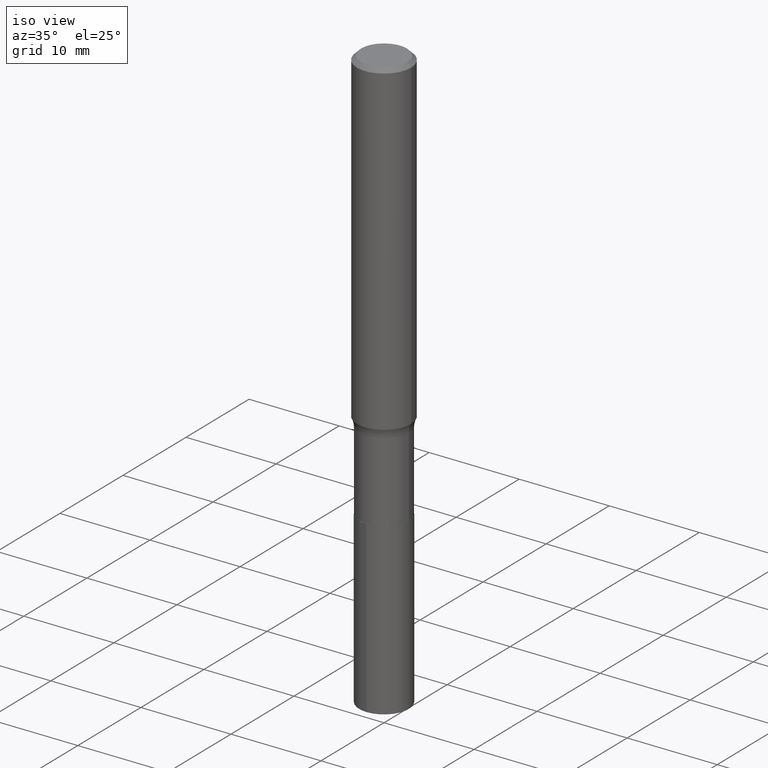
[diagram: clean part render]
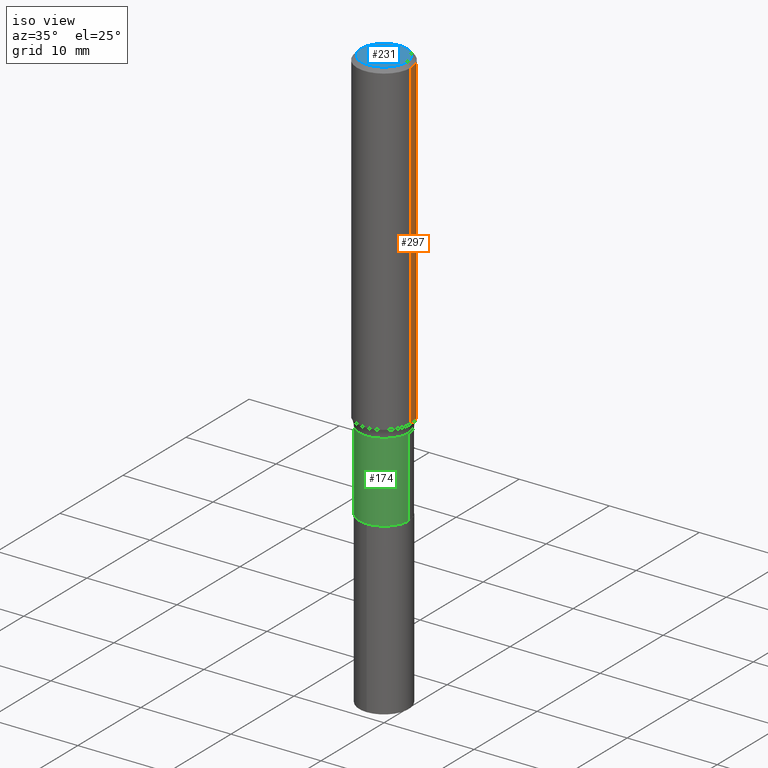
[diagram: same view with three faces highlighted in distinct colors, each labeled with its STEP entity id]
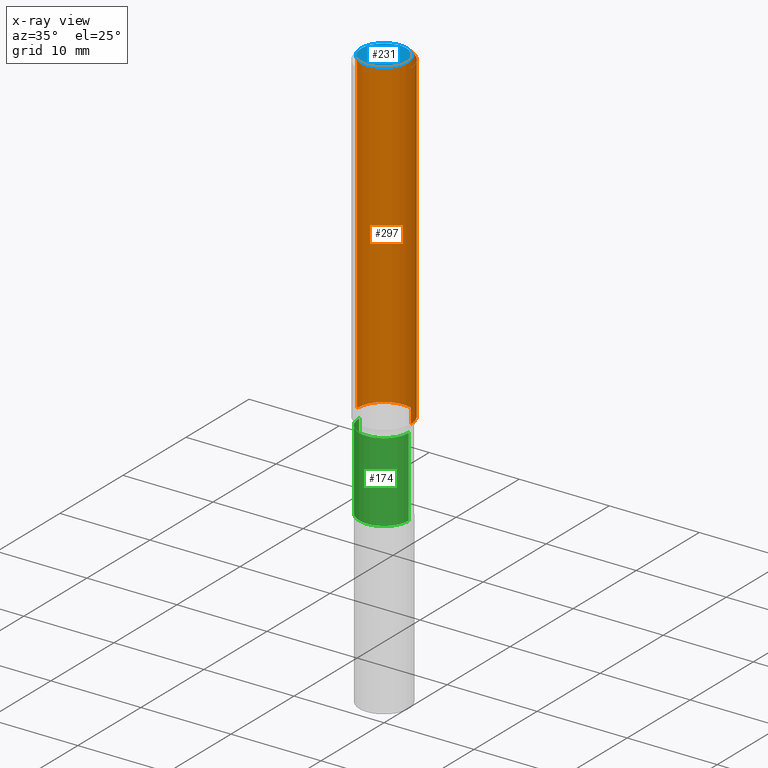
[diagram: x-ray of the same camera — body ghosted, the three highlighted faces saturated]
A machine part, iso view with three faces highlighted in distinct colors.
The next image is the same camera in x-ray (body ghosted, the three faces saturated) — at least one of them is partly hidden behind the body in this view.
Their STEP definitions:

[orange] entity #297 — the highlighted cylindrical surface (edge-blend (fillet) strip) has radius 2.9997 mm, axis along (-0, 0, 1).
#6 = DIRECTION ( 'NONE',  ( 1.000000000000000000, -6.982962677686266711E-15, 0.000000000000000000 ) ) ;
#22 = VECTOR ( 'NONE', #100, 39.37007874015748143 ) ;
#33 = AXIS2_PLACEMENT_3D ( 'NONE', #379, #261, #305 ) ;
#70 = VERTEX_POINT ( 'NONE', #304 ) ;
#86 = AXIS2_PLACEMENT_3D ( 'NONE', #457, #184, #6 ) ;
#100 = DIRECTION ( 'NONE',  ( -2.445468806185136877E-29, 3.491481338843145188E-15, 1.000000000000000000 ) ) ;
#129 = VERTEX_POINT ( 'NONE', #466 ) ;
#134 = CARTESIAN_POINT ( 'NONE',  ( -0.1181000000000000799, 8.391509709326788873E-16, -5.809262341591047988E-30 ) ) ;
#152 = VECTOR ( 'NONE', #459, 39.37007874015748143 ) ;
#165 = CIRCLE ( 'NONE', #86, 0.1180999999999999966 ) ;
#169 = ORIENTED_EDGE ( 'NONE', *, *, #186, .T. ) ;
#177 = ORIENTED_EDGE ( 'NONE', *, *, #233, .T. ) ;
#184 = DIRECTION ( 'NONE',  ( -2.445468806185136597E-29, 3.491481338843145583E-15, 1.000000000000000000 ) ) ;
#186 = EDGE_CURVE ( 'NONE', #440, #129, #453, .T. ) ;
#188 = FACE_OUTER_BOUND ( 'NONE', #392, .T. ) ;
#228 = AXIS2_PLACEMENT_3D ( 'NONE', #232, #386, #306 ) ;
#232 = CARTESIAN_POINT ( 'NONE',  ( 3.486158196102022756E-29, -4.977309976377515636E-15, -1.425558235412674124 ) ) ;
#233 = EDGE_CURVE ( 'NONE', #129, #70, #314, .T. ) ;
#247 = ORIENTED_EDGE ( 'NONE', *, *, #302, .F. ) ;
#261 = DIRECTION ( 'NONE',  ( -2.445468806185136597E-29, 3.491481338843145583E-15, 1.000000000000000000 ) ) ;
#264 = LINE ( 'NONE', #342, #152 ) ;
#284 = ORIENTED_EDGE ( 'NONE', *, *, #414, .F. ) ;
#297 = ADVANCED_FACE ( 'NONE', ( #188 ), #373, .T. ) ;
#302 = EDGE_CURVE ( 'NONE', #370, #70, #165, .T. ) ;
#304 = CARTESIAN_POINT ( 'NONE',  ( -0.1180999999999999966, -1.680429813214881537E-15, -0.01771500000000010913 ) ) ;
#305 = DIRECTION ( 'NONE',  ( 1.000000000000000000, -6.982962677686266711E-15, 4.876176775795936353E-29 ) ) ;
#306 = DIRECTION ( 'NONE',  ( 1.000000000000000000, -6.982962677686263555E-15, 0.000000000000000000 ) ) ;
#314 = LINE ( 'NONE', #134, #22 ) ;
#342 = CARTESIAN_POINT ( 'NONE',  ( 0.1181000000000000799, -8.246878922347486570E-16, 5.758764772215004644E-30 ) ) ;
#370 = VERTEX_POINT ( 'NONE', #484 ) ;
#373 = CYLINDRICAL_SURFACE ( 'NONE', #33, 0.1181000000000000799 ) ;
#379 = CARTESIAN_POINT ( 'NONE',  ( 0.000000000000000000, 0.000000000000000000, 0.000000000000000000 ) ) ;
#386 = DIRECTION ( 'NONE',  ( -2.445468806185136597E-29, 3.491481338843145583E-15, 1.000000000000000000 ) ) ;
#392 = EDGE_LOOP ( 'NONE', ( #169, #177, #247, #284 ) ) ;
#414 = EDGE_CURVE ( 'NONE', #440, #370, #264, .T. ) ;
#440 = VERTEX_POINT ( 'NONE', #489 ) ;
#453 = CIRCLE ( 'NONE', #228, 0.1181000000000001632 ) ;
#457 = CARTESIAN_POINT ( 'NONE',  ( 4.332147990156996744E-31, -6.185159191760670395E-17, -0.01771500000000010913 ) ) ;
#459 = DIRECTION ( 'NONE',  ( -2.445468806185136877E-29, 3.491481338843145188E-15, 1.000000000000000000 ) ) ;
#466 = CARTESIAN_POINT ( 'NONE',  ( -0.1181000000000001909, -4.138159005444835862E-15, -1.425558235412674124 ) ) ;
#484 = CARTESIAN_POINT ( 'NONE',  ( 0.1180999999999999966, -8.865394841523547570E-16, -0.01771500000000010913 ) ) ;
#489 = CARTESIAN_POINT ( 'NONE',  ( 0.1181000000000001909, -5.801997868612264688E-15, -1.425558235412674124 ) ) ;

[blue] entity #231 — the highlighted planar face has unit normal (0, -0, -1).
#19 = ORIENTED_EDGE ( 'NONE', *, *, #147, .T. ) ;
#82 = DIRECTION ( 'NONE',  ( 1.000000000000000000, -6.982962677686266711E-15, 4.875668750515085695E-29 ) ) ;
#85 = CARTESIAN_POINT ( 'NONE',  ( 0.1003850000000000159, -7.803837484803599345E-16, -2.868857591682071522E-17 ) ) ;
#88 = FACE_OUTER_BOUND ( 'NONE', #345, .T. ) ;
#124 = PLANE ( 'NONE',  #426 ) ;
#147 = EDGE_CURVE ( 'NONE', #472, #173, #277, .T. ) ;
#159 = CARTESIAN_POINT ( 'NONE',  ( 7.015701749847187307E-46, -1.001656274515824970E-31, -2.868857591682589212E-17 ) ) ;
#160 = EDGE_CURVE ( 'NONE', #173, #472, #250, .T. ) ;
#173 = VERTEX_POINT ( 'NONE', #85 ) ;
#231 = ADVANCED_FACE ( 'NONE', ( #88 ), #124, .F. ) ;
#236 = DIRECTION ( 'NONE',  ( 2.438088387897960049E-29, -3.491481338843145188E-15, -1.000000000000000000 ) ) ;
#241 = AXIS2_PLACEMENT_3D ( 'NONE', #159, #269, #341 ) ;
#250 = CIRCLE ( 'NONE', #241, 0.1003850000000000159 ) ;
#269 = DIRECTION ( 'NONE',  ( -2.445468806185136597E-29, 3.491481338843145583E-15, 1.000000000000000000 ) ) ;
#277 = CIRCLE ( 'NONE', #346, 0.1003850000000000159 ) ;
#341 = DIRECTION ( 'NONE',  ( 1.000000000000000000, -6.982962677686266711E-15, 4.875668750515085695E-29 ) ) ;
#345 = EDGE_LOOP ( 'NONE', ( #19, #390 ) ) ;
#346 = AXIS2_PLACEMENT_3D ( 'NONE', #464, #348, #82 ) ;
#348 = DIRECTION ( 'NONE',  ( -2.445468806185136597E-29, 3.491481338843145583E-15, 1.000000000000000000 ) ) ;
#352 = CARTESIAN_POINT ( 'NONE',  ( 3.507850874923593654E-46, -5.008281372579124849E-32, -1.434428795841294606E-17 ) ) ;
#390 = ORIENTED_EDGE ( 'NONE', *, *, #160, .T. ) ;
#426 = AXIS2_PLACEMENT_3D ( 'NONE', #352, #236, #481 ) ;
#464 = CARTESIAN_POINT ( 'NONE',  ( 7.015701749847187307E-46, -1.001656274515824970E-31, -2.868857591682589212E-17 ) ) ;
#472 = VERTEX_POINT ( 'NONE', #478 ) ;
#478 = CARTESIAN_POINT ( 'NONE',  ( -0.1003850000000000159, 7.319105043583386689E-16, -2.868857591683090262E-17 ) ) ;
#481 = DIRECTION ( 'NONE',  ( -1.000000000000000000, 6.982962677686265922E-15, -4.876176775795935793E-29 ) ) ;

[green] entity #174 — the highlighted cylindrical surface (edge-blend (fillet) strip) has radius 2.7495 mm, axis along (-0, 0, 1).
#7 = CYLINDRICAL_SURFACE ( 'NONE', #171, 0.1082499999999999851 ) ;
#8 = CARTESIAN_POINT ( 'NONE',  ( 4.427521273598189436E-29, -6.321326963975514491E-15, -1.810499999999999998 ) ) ;
#11 = DIRECTION ( 'NONE',  ( 1.000000000000000000, -6.982962677686266711E-15, 4.876176775795935232E-29 ) ) ;
#35 = VERTEX_POINT ( 'NONE', #446 ) ;
#39 = DIRECTION ( 'NONE',  ( -2.445468806185136877E-29, 3.491481338843145188E-15, 1.000000000000000000 ) ) ;
#43 = DIRECTION ( 'NONE',  ( -2.445468806185136877E-29, 3.491481338843145188E-15, 1.000000000000000000 ) ) ;
#49 = CARTESIAN_POINT ( 'NONE',  ( -0.1082499999999999851, 7.691625114603083455E-16, -5.324747235200934608E-30 ) ) ;
#50 = DIRECTION ( 'NONE',  ( -2.445468806185136597E-29, 3.491481338843145583E-15, 1.000000000000000000 ) ) ;
#53 = EDGE_CURVE ( 'NONE', #90, #360, #67, .T. ) ;
#67 = LINE ( 'NONE', #181, #389 ) ;
#78 = DIRECTION ( 'NONE',  ( 1.000000000000000000, -6.982962677686269077E-15, 0.000000000000000000 ) ) ;
#90 = VERTEX_POINT ( 'NONE', #483 ) ;
#96 = ORIENTED_EDGE ( 'NONE', *, *, #422, .T. ) ;
#104 = EDGE_CURVE ( 'NONE', #35, #360, #283, .T. ) ;
#109 = CARTESIAN_POINT ( 'NONE',  ( 0.1082499999999999712, -5.865688649256481550E-15, -1.463499999999999801 ) ) ;
#114 = CARTESIAN_POINT ( 'NONE',  ( 3.578943597851946643E-29, -5.109782939396942894E-15, -1.463499999999999801 ) ) ;
#171 = AXIS2_PLACEMENT_3D ( 'NONE', #230, #50, #11 ) ;
#174 = ADVANCED_FACE ( 'NONE', ( #192 ), #7, .T. ) ;
#181 = CARTESIAN_POINT ( 'NONE',  ( 0.1082499999999999851, -7.559057098595382610E-16, 5.278461359799099291E-30 ) ) ;
#192 = FACE_OUTER_BOUND ( 'NONE', #205, .T. ) ;
#193 = DIRECTION ( 'NONE',  ( 1.000000000000000000, -6.982962677686267499E-15, 0.000000000000000000 ) ) ;
#198 = ORIENTED_EDGE ( 'NONE', *, *, #104, .F. ) ;
#205 = EDGE_LOOP ( 'NONE', ( #243, #96, #319, #198 ) ) ;
#208 = VECTOR ( 'NONE', #43, 39.37007874015748143 ) ;
#230 = CARTESIAN_POINT ( 'NONE',  ( 0.000000000000000000, 0.000000000000000000, 0.000000000000000000 ) ) ;
#242 = CIRCLE ( 'NONE', #372, 0.1082499999999999990 ) ;
#243 = ORIENTED_EDGE ( 'NONE', *, *, #260, .F. ) ;
#260 = EDGE_CURVE ( 'NONE', #411, #35, #298, .T. ) ;
#283 = CIRCLE ( 'NONE', #315, 0.1082499999999999712 ) ;
#298 = LINE ( 'NONE', #49, #208 ) ;
#307 = DIRECTION ( 'NONE',  ( -2.445468806185136597E-29, 3.491481338843145583E-15, 1.000000000000000000 ) ) ;
#315 = AXIS2_PLACEMENT_3D ( 'NONE', #114, #415, #78 ) ;
#319 = ORIENTED_EDGE ( 'NONE', *, *, #53, .T. ) ;
#360 = VERTEX_POINT ( 'NONE', #109 ) ;
#372 = AXIS2_PLACEMENT_3D ( 'NONE', #8, #307, #193 ) ;
#389 = VECTOR ( 'NONE', #39, 39.37007874015748143 ) ;
#407 = CARTESIAN_POINT ( 'NONE',  ( -0.1082499999999999990, -4.946392440225920150E-15, -1.810499999999999998 ) ) ;
#411 = VERTEX_POINT ( 'NONE', #407 ) ;
#415 = DIRECTION ( 'NONE',  ( -2.445468806185136597E-29, 3.491481338843145583E-15, 1.000000000000000000 ) ) ;
#422 = EDGE_CURVE ( 'NONE', #411, #90, #242, .T. ) ;
#446 = CARTESIAN_POINT ( 'NONE',  ( -0.1082499999999999712, -4.946392440225920150E-15, -1.463499999999999801 ) ) ;
#483 = CARTESIAN_POINT ( 'NONE',  ( 0.1082499999999999990, -7.077232673835053147E-15, -1.810499999999999998 ) ) ;